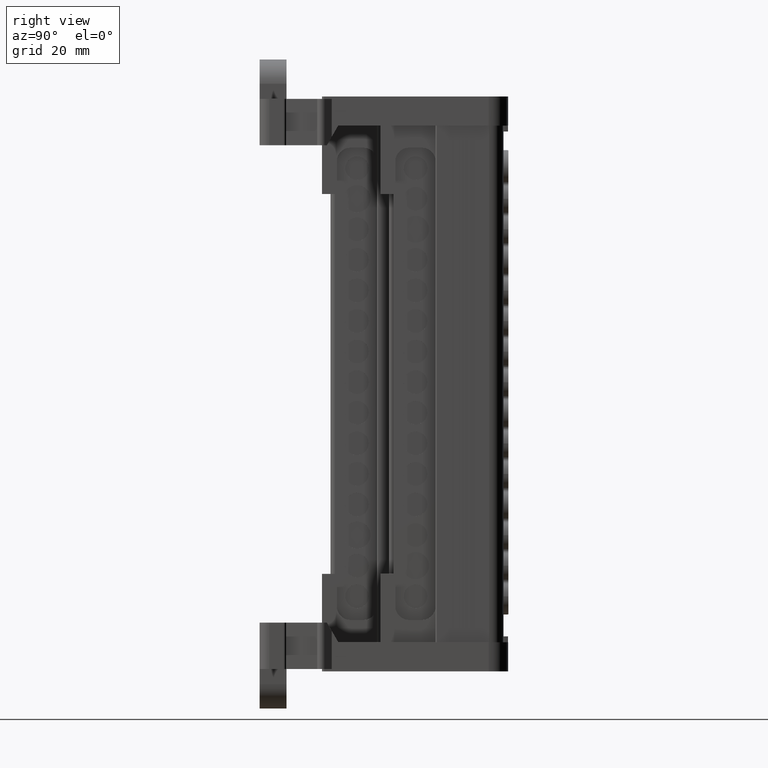
[diagram: clean part render]
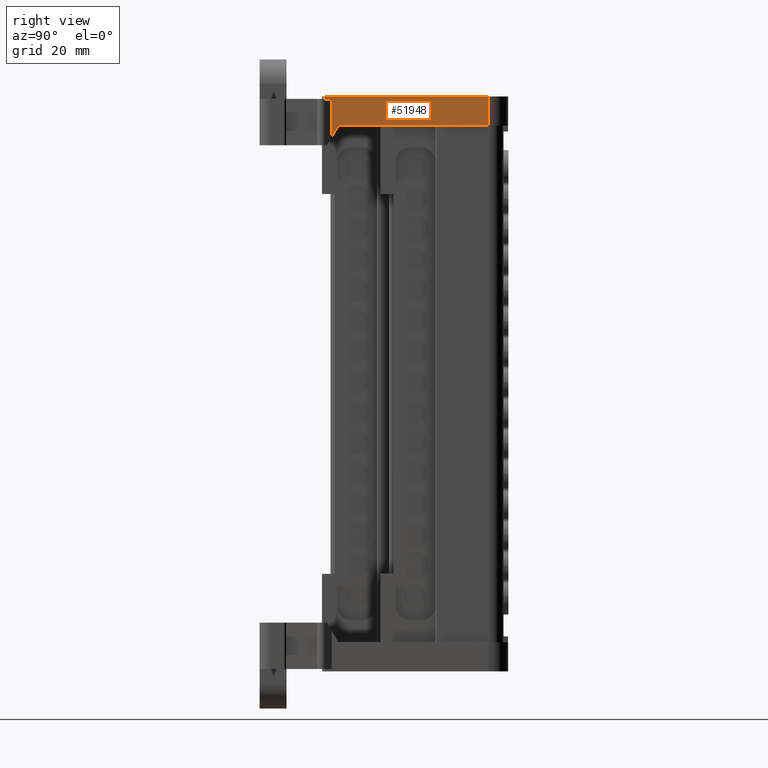
[diagram: same view with one face highlighted and labeled with its STEP entity id]
A machine part, right view. The second image highlights one B-rep face of the part: STEP entity #51948.
In plain terms, the highlighted planar face has unit normal (-1, -0, 0).
Its self-contained STEP definition (entity closure, byte-faithful):
#8839 = AXIS2_PLACEMENT_3D ( 'NONE', #23396, #23398, #23383 ) ;
#10296 = CARTESIAN_POINT ( 'NONE',  ( -25.88403632107860700, 45.48168290469484300, 69.47218928989215700 ) ) ;
#16314 = VECTOR ( 'NONE', #94764, 1000.000000000000000 ) ;
#16388 = VECTOR ( 'NONE', #95791, 1000.000000000000000 ) ;
#17532 = ORIENTED_EDGE ( 'NONE', *, *, #59513, .F. ) ;
#17564 = ORIENTED_EDGE ( 'NONE', *, *, #27063, .T. ) ;
#17568 = ORIENTED_EDGE ( 'NONE', *, *, #59508, .F. ) ;
#17578 = ORIENTED_EDGE ( 'NONE', *, *, #59523, .F. ) ;
#17603 = ORIENTED_EDGE ( 'NONE', *, *, #67284, .F. ) ;
#17640 = ORIENTED_EDGE ( 'NONE', *, *, #67250, .T. ) ;
#17651 = ORIENTED_EDGE ( 'NONE', *, *, #59603, .F. ) ;
#21995 = CARTESIAN_POINT ( 'NONE',  ( -25.88403632107857900, 14.73171736614592800, 69.47218928989222800 ) ) ;
#22090 = CARTESIAN_POINT ( 'NONE',  ( -25.88403632107860700, 45.48168290469475700, 75.43719772445145100 ) ) ;
#22109 = CARTESIAN_POINT ( 'NONE',  ( -25.88403632107857900, 11.92058348562464000, 75.43719772445146500 ) ) ;
#22122 = CARTESIAN_POINT ( 'NONE',  ( -25.88403632107859300, 13.41374584738996300, 67.18939565647779900 ) ) ;
#23382 = FACE_OUTER_BOUND ( 'NONE', #56229, .T. ) ;
#23383 = DIRECTION ( 'NONE',  ( 6.938893903892216900E-018, 0.0000000000000000000, 1.000000000000000000 ) ) ;
#23396 = CARTESIAN_POINT ( 'NONE',  ( -25.88403632107857900, 12.41911145422002200, 23.57842095877244800 ) ) ;
#23398 = DIRECTION ( 'NONE',  ( -1.000000000000000000, -5.567141245485240800E-032, 6.938893903892216900E-018 ) ) ;
#23404 = PLANE ( 'NONE',  #8839 ) ;
#27063 = EDGE_CURVE ( 'NONE', #61596, #61671, #87208, .T. ) ;
#27759 = VECTOR ( 'NONE', #70344, 1000.000000000000000 ) ;
#27812 = VECTOR ( 'NONE', #70385, 1000.000000000000000 ) ;
#27832 = VECTOR ( 'NONE', #70397, 1000.000000000000000 ) ;
#47672 = VERTEX_POINT ( 'NONE', #21995 ) ;
#47715 = VERTEX_POINT ( 'NONE', #22122 ) ;
#47727 = VERTEX_POINT ( 'NONE', #22109 ) ;
#47734 = VERTEX_POINT ( 'NONE', #22090 ) ;
#51948 = ADVANCED_FACE ( 'NONE', ( #23382 ), #23404, .F. ) ;
#56229 = EDGE_LOOP ( 'NONE', ( #17564, #17568, #17532, #17640, #17603, #17651, #17578 ) ) ;
#59508 = EDGE_CURVE ( 'NONE', #47715, #61671, #70362, .T. ) ;
#59513 = EDGE_CURVE ( 'NONE', #47672, #47715, #70353, .T. ) ;
#59523 = EDGE_CURVE ( 'NONE', #61596, #47727, #70409, .T. ) ;
#59603 = EDGE_CURVE ( 'NONE', #47727, #47734, #104142, .T. ) ;
#61596 = VERTEX_POINT ( 'NONE', #73143 ) ;
#61671 = VERTEX_POINT ( 'NONE', #73191 ) ;
#66921 = VECTOR ( 'NONE', #87184, 1000.000000000000000 ) ;
#67250 = EDGE_CURVE ( 'NONE', #47672, #73594, #95750, .T. ) ;
#67284 = EDGE_CURVE ( 'NONE', #47734, #73594, #94745, .T. ) ;
#70344 = DIRECTION ( 'NONE',  ( 6.938893903892216900E-018, 0.0000000000000000000, 1.000000000000000000 ) ) ;
#70353 = LINE ( 'NONE', #70376, #27812 ) ;
#70362 = LINE ( 'NONE', #70369, #27759 ) ;
#70369 = CARTESIAN_POINT ( 'NONE',  ( -25.88403632107857900, 13.41374584738996800, 23.57842095877244800 ) ) ;
#70376 = CARTESIAN_POINT ( 'NONE',  ( -25.88403632107857900, 14.73171736614590400, 69.47218928989210000 ) ) ;
#70385 = DIRECTION ( 'NONE',  ( 0.0000000000000000000, -0.4999999999999504800, -0.8660254037844672400 ) ) ;
#70393 = CARTESIAN_POINT ( 'NONE',  ( -25.88403632107857900, 11.92058348562464300, 23.57842095877244800 ) ) ;
#70397 = DIRECTION ( 'NONE',  ( 6.938893903892216900E-018, 0.0000000000000000000, 1.000000000000000000 ) ) ;
#70409 = LINE ( 'NONE', #70393, #27832 ) ;
#70747 = CARTESIAN_POINT ( 'NONE',  ( -25.88403632107858600, 23.10761662531467300, 75.43719772445148000 ) ) ;
#70753 = CARTESIAN_POINT ( 'NONE',  ( -25.88403632107859300, 34.29464976500472100, 75.43719772445148000 ) ) ;
#70760 = CARTESIAN_POINT ( 'NONE',  ( -25.88403632107860700, 45.48168290469475700, 75.43719772445145100 ) ) ;
#70764 = CARTESIAN_POINT ( 'NONE',  ( -25.88403632107857900, 11.92058348562464000, 75.43719772445146500 ) ) ;
#73143 = CARTESIAN_POINT ( 'NONE',  ( -25.88403632107857900, 11.92058348562464300, 74.93866975585649500 ) ) ;
#73191 = CARTESIAN_POINT ( 'NONE',  ( -25.88403632107857900, 13.41374584738997400, 74.93866975585649500 ) ) ;
#73594 = VERTEX_POINT ( 'NONE', #10296 ) ;
#87183 = CARTESIAN_POINT ( 'NONE',  ( -25.88403632107857900, -10.62764597436905100, 74.93866975585649500 ) ) ;
#87184 = DIRECTION ( 'NONE',  ( 2.513006674826307200E-075, 1.000000000000000000, -7.151619244811209800E-046 ) ) ;
#87208 = LINE ( 'NONE', #87183, #66921 ) ;
#94745 = LINE ( 'NONE', #94752, #16314 ) ;
#94752 = CARTESIAN_POINT ( 'NONE',  ( -25.88403632107863200, 45.48168290469431000, 132.0169433229093600 ) ) ;
#94764 = DIRECTION ( 'NONE',  ( -6.938893903892216100E-018, 7.965850201685501300E-015, -1.000000000000000000 ) ) ;
#95750 = LINE ( 'NONE', #95780, #16388 ) ;
#95780 = CARTESIAN_POINT ( 'NONE',  ( -25.88403632107857900, 12.41911145422002200, 69.47218928989215700 ) ) ;
#95791 = DIRECTION ( 'NONE',  ( -5.567141245485240800E-032, 1.000000000000000000, 3.862980245040446400E-049 ) ) ;
#104142 = B_SPLINE_CURVE_WITH_KNOTS ( 'NONE', 3,
 ( #70764, #70747, #70753, #70760 ),
 .UNSPECIFIED., .F., .F.,
 ( 4, 4 ),
 ( 0.0000000000000000000, 1.000000000000000000 ),
 .UNSPECIFIED. ) ;